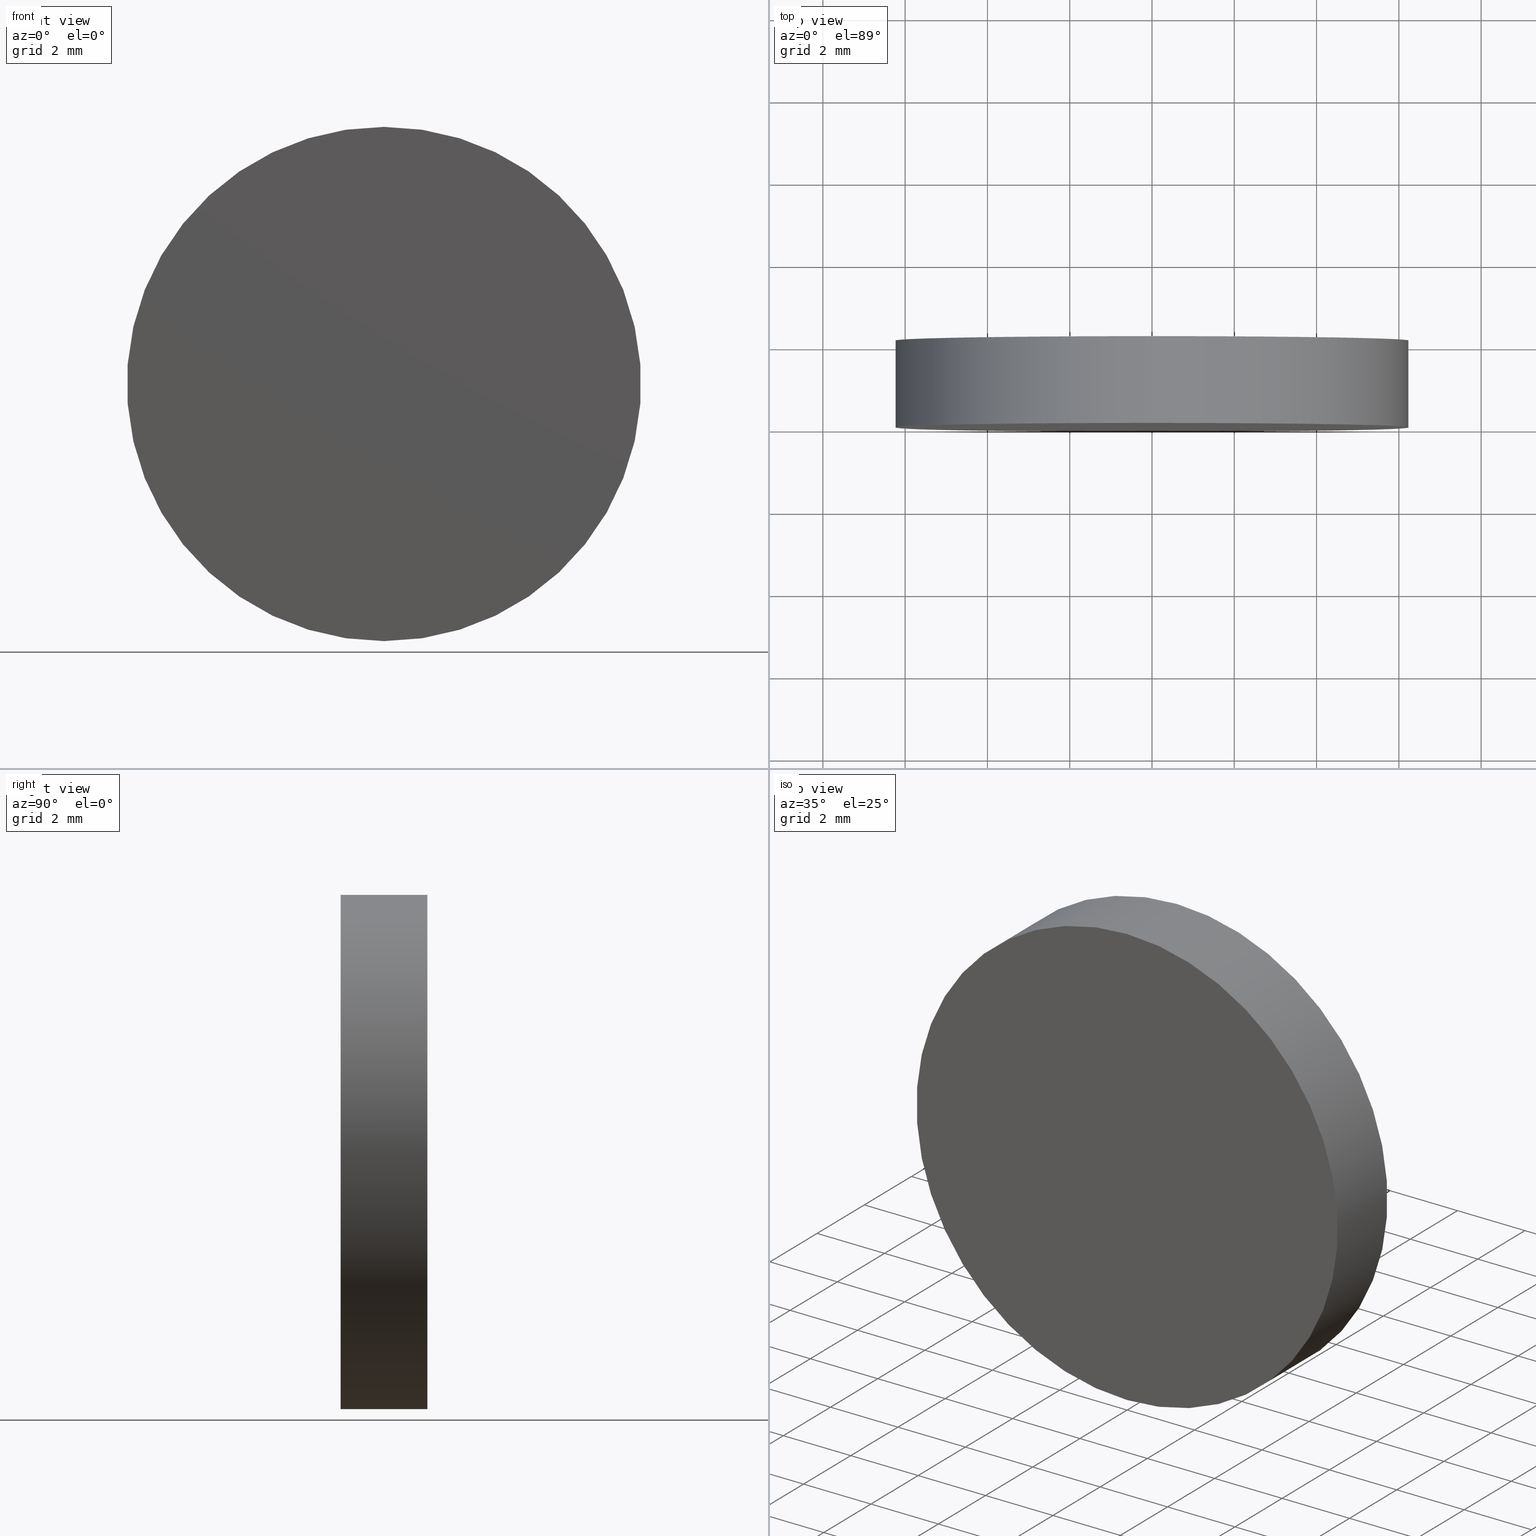
[diagram: canonical four-view strip — front | top / right | iso, engineering-drawing reading convention]
A machine part, canonical four-view strip (front | top / right | iso — engineering-drawing reading convention). The complete STEP part file that produces these views, byte-faithful:
ISO-10303-21;
HEADER;
FILE_DESCRIPTION (( 'STEP AP214' ),
    '1' );
FILE_NAME ('248572.STEP',
    '2019-08-02T08:30:41',
    ( 'user' ),
    ( '΢���й�' ),
    'SwSTEP 2.0',
    'SolidWorks 2016',
    '' );
FILE_SCHEMA (( 'AUTOMOTIVE_DESIGN' ));
ENDSEC;

DATA;
#1 = CARTESIAN_POINT ( 'NONE',  ( 0.0000000000000000000, 0.0000000000000000000, 0.0000000000000000000 ) ) ;
#2 = SURFACE_SIDE_STYLE ('',( #54 ) ) ;
#3 = SHAPE_DEFINITION_REPRESENTATION ( #124, #74 ) ;
#4 = COLOUR_RGB ( '',1.000000000000000000, 1.000000000000000000, 1.000000000000000000 ) ;
#5 = EDGE_CURVE ( 'NONE', #65, #125, #123, .T. ) ;
#6 = PRESENTATION_STYLE_ASSIGNMENT (( #50 ) ) ;
#7 = DIRECTION ( 'NONE',  ( 0.0000000000000000000, 0.0000000000000000000, 1.000000000000000000 ) ) ;
#8 = PRODUCT_DEFINITION_FORMATION_WITH_SPECIFIED_SOURCE ( '�κ�', '', #60, .NOT_KNOWN. ) ;
#9 = DIRECTION ( 'NONE',  ( 0.0000000000000000000, 1.000000000000000000, 0.0000000000000000000 ) ) ;
#10 = DIRECTION ( 'NONE',  ( 0.0000000000000000000, 1.000000000000000000, 0.0000000000000000000 ) ) ;
#11 = APPLICATION_CONTEXT ( 'automotive_design' ) ;
#12 =( NAMED_UNIT ( * ) SI_UNIT ( $, .STERADIAN. ) SOLID_ANGLE_UNIT ( ) );
#13 = VERTEX_POINT ( 'NONE', #49 ) ;
#14 = ORIENTED_EDGE ( 'NONE', *, *, #91, .F. ) ;
#15 = SURFACE_SIDE_STYLE ('',( #86 ) ) ;
#16 = CARTESIAN_POINT ( 'NONE',  ( 0.0000000000000000000, 0.0000000000000000000, 0.0000000000000000000 ) ) ;
#17 = EDGE_CURVE ( 'NONE', #13, #65, #31, .T. ) ;
#18 = CIRCLE ( 'NONE', #41, 6.250000000000000000 ) ;
#19 = DIRECTION ( 'NONE',  ( 0.0000000000000000000, 1.000000000000000000, 0.0000000000000000000 ) ) ;
#20 = ORIENTED_EDGE ( 'NONE', *, *, #5, .T. ) ;
#21 = FACE_OUTER_BOUND ( 'NONE', #24, .T. ) ;
#22 = DIRECTION ( 'NONE',  ( 1.000000000000000000, 0.0000000000000000000, 0.0000000000000000000 ) ) ;
#23 = STYLED_ITEM ( 'NONE', ( #6 ), #74 ) ;
#24 = EDGE_LOOP ( 'NONE', ( #14, #34 ) ) ;
#25 = FILL_AREA_STYLE_COLOUR ( '', #59 ) ;
#26 = EDGE_CURVE ( 'NONE', #13, #106, #29, .T. ) ;
#27 = CARTESIAN_POINT ( 'NONE',  ( 0.0000000000000000000, 0.0000000000000000000, -6.250000000000000000 ) ) ;
#28 =( GEOMETRIC_REPRESENTATION_CONTEXT ( 3 ) GLOBAL_UNCERTAINTY_ASSIGNED_CONTEXT ( ( #117 ) ) GLOBAL_UNIT_ASSIGNED_CONTEXT ( ( #128, #37, #115 ) ) REPRESENTATION_CONTEXT ( 'NONE', 'WORKASPACE' ) );
#29 = LINE ( 'NONE', #78, #121 ) ;
#30 = ADVANCED_FACE ( 'NONE', ( #36 ), #83, .T. ) ;
#31 = CIRCLE ( 'NONE', #61, 6.250000000000000000 ) ;
#32 = AXIS2_PLACEMENT_3D ( 'NONE', #1, #107, #22 ) ;
#33 = DIRECTION ( 'NONE',  ( 0.0000000000000000000, -0.0000000000000000000, 1.000000000000000000 ) ) ;
#34 = ORIENTED_EDGE ( 'NONE', *, *, #58, .F. ) ;
#35 = DIRECTION ( 'NONE',  ( 0.0000000000000000000, 0.0000000000000000000, 1.000000000000000000 ) ) ;
#36 = FACE_OUTER_BOUND ( 'NONE', #134, .T. ) ;
#37 =( NAMED_UNIT ( * ) PLANE_ANGLE_UNIT ( ) SI_UNIT ( $, .RADIAN. ) );
#38 = AXIS2_PLACEMENT_3D ( 'NONE', #131, #56, #114 ) ;
#39 = ORIENTED_EDGE ( 'NONE', *, *, #5, .F. ) ;
#40 = ORIENTED_EDGE ( 'NONE', *, *, #58, .T. ) ;
#41 = AXIS2_PLACEMENT_3D ( 'NONE', #77, #9, #63 ) ;
#42 = VECTOR ( 'NONE', #127, 1000.000000000000000 ) ;
#43 = CLOSED_SHELL ( 'NONE', ( #30, #118, #119, #135 ) ) ;
#44 = CARTESIAN_POINT ( 'NONE',  ( 0.0000000000000000000, 0.0000000000000000000, 0.0000000000000000000 ) ) ;
#45 = PRESENTATION_LAYER_ASSIGNMENT (  '', '', ( #129 ) ) ;
#46 = CARTESIAN_POINT ( 'NONE',  ( 0.0000000000000000000, 2.109999999999999900, 0.0000000000000000000 ) ) ;
#47 =( NAMED_UNIT ( * ) SI_UNIT ( $, .STERADIAN. ) SOLID_ANGLE_UNIT ( ) );
#48 = PRESENTATION_LAYER_ASSIGNMENT (  '', '', ( #23 ) ) ;
#49 = CARTESIAN_POINT ( 'NONE',  ( 0.0000000000000000000, 2.109999999999999900, -6.250000000000000000 ) ) ;
#50 = SURFACE_STYLE_USAGE ( .BOTH. , #2 ) ;
#51 = ORIENTED_EDGE ( 'NONE', *, *, #81, .F. ) ;
#52 = AXIS2_PLACEMENT_3D ( 'NONE', #122, #89, #139 ) ;
#53 = DIRECTION ( 'NONE',  ( 0.0000000000000000000, 0.0000000000000000000, 1.000000000000000000 ) ) ;
#54 = SURFACE_STYLE_FILL_AREA ( #57 ) ;
#55 = SURFACE_STYLE_USAGE ( .BOTH. , #15 ) ;
#56 = DIRECTION ( 'NONE',  ( -0.0000000000000000000, -1.000000000000000000, -0.0000000000000000000 ) ) ;
#57 = FILL_AREA_STYLE ('',( #100 ) ) ;
#58 = EDGE_CURVE ( 'NONE', #125, #106, #18, .T. ) ;
#59 = COLOUR_RGB ( '',1.000000000000000000, 1.000000000000000000, 1.000000000000000000 ) ;
#60 = PRODUCT ( '248572', '248572', '', ( #93 ) ) ;
#61 = AXIS2_PLACEMENT_3D ( 'NONE', #126, #19, #53 ) ;
#62 = CYLINDRICAL_SURFACE ( 'NONE', #52, 6.250000000000000000 ) ;
#63 = DIRECTION ( 'NONE',  ( 0.0000000000000000000, 0.0000000000000000000, 1.000000000000000000 ) ) ;
#64 = APPLICATION_CONTEXT ( 'automotive_design' ) ;
#65 = VERTEX_POINT ( 'NONE', #102 ) ;
#66 =( LENGTH_UNIT ( ) NAMED_UNIT ( * ) SI_UNIT ( .MILLI., .METRE. ) );
#67 = PRODUCT_DEFINITION ( 'δ֪', '', #8, #136 ) ;
#68 = EDGE_LOOP ( 'NONE', ( #97, #75 ) ) ;
#69 =( NAMED_UNIT ( * ) PLANE_ANGLE_UNIT ( ) SI_UNIT ( $, .RADIAN. ) );
#70 = PRODUCT_RELATED_PRODUCT_CATEGORY ( 'part', '', ( #60 ) ) ;
#71 = CIRCLE ( 'NONE', #85, 6.250000000000000000 ) ;
#72 = ORIENTED_EDGE ( 'NONE', *, *, #26, .F. ) ;
#73 =( GEOMETRIC_REPRESENTATION_CONTEXT ( 3 ) GLOBAL_UNCERTAINTY_ASSIGNED_CONTEXT ( ( #105 ) ) GLOBAL_UNIT_ASSIGNED_CONTEXT ( ( #82, #69, #12 ) ) REPRESENTATION_CONTEXT ( 'NONE', 'WORKASPACE' ) );
#74 = ADVANCED_BREP_SHAPE_REPRESENTATION ( '248572', ( #133, #32 ), #73 ) ;
#75 = ORIENTED_EDGE ( 'NONE', *, *, #81, .T. ) ;
#76 = DIRECTION ( 'NONE',  ( 0.0000000000000000000, 1.000000000000000000, 0.0000000000000000000 ) ) ;
#77 = CARTESIAN_POINT ( 'NONE',  ( 0.0000000000000000000, 0.0000000000000000000, 0.0000000000000000000 ) ) ;
#78 = CARTESIAN_POINT ( 'NONE',  ( 0.0000000000000000000, 2.109999999999999900, -6.250000000000000000 ) ) ;
#79 = APPLICATION_PROTOCOL_DEFINITION ( 'draft international standard', 'automotive_design', 1998, #64 ) ;
#80 = APPLICATION_PROTOCOL_DEFINITION ( 'draft international standard', 'automotive_design', 1998, #11 ) ;
#81 = EDGE_CURVE ( 'NONE', #65, #13, #71, .T. ) ;
#82 =( LENGTH_UNIT ( ) NAMED_UNIT ( * ) SI_UNIT ( .MILLI., .METRE. ) );
#83 = CYLINDRICAL_SURFACE ( 'NONE', #38, 6.250000000000000000 ) ;
#84 = AXIS2_PLACEMENT_3D ( 'NONE', #44, #10, #140 ) ;
#85 = AXIS2_PLACEMENT_3D ( 'NONE', #46, #111, #35 ) ;
#86 = SURFACE_STYLE_FILL_AREA ( #88 ) ;
#87 = UNCERTAINTY_MEASURE_WITH_UNIT (LENGTH_MEASURE( 1.000000000000000100E-005 ), #66, 'distance_accuracy_value', 'NONE');
#88 = FILL_AREA_STYLE ('',( #25 ) ) ;
#89 = DIRECTION ( 'NONE',  ( -0.0000000000000000000, -1.000000000000000000, -0.0000000000000000000 ) ) ;
#90 = FACE_OUTER_BOUND ( 'NONE', #132, .T. ) ;
#91 = EDGE_CURVE ( 'NONE', #106, #125, #109, .T. ) ;
#92 = DIRECTION ( 'NONE',  ( -0.0000000000000000000, -1.000000000000000000, -0.0000000000000000000 ) ) ;
#93 = PRODUCT_CONTEXT ( 'NONE', #64, 'mechanical' ) ;
#94 = FACE_OUTER_BOUND ( 'NONE', #68, .T. ) ;
#95 = ORIENTED_EDGE ( 'NONE', *, *, #17, .F. ) ;
#96 = MECHANICAL_DESIGN_GEOMETRIC_PRESENTATION_REPRESENTATION (  '', ( #129 ), #104 ) ;
#97 = ORIENTED_EDGE ( 'NONE', *, *, #17, .T. ) ;
#98 = ORIENTED_EDGE ( 'NONE', *, *, #91, .T. ) ;
#99 = MECHANICAL_DESIGN_GEOMETRIC_PRESENTATION_REPRESENTATION (  '', ( #23 ), #28 ) ;
#100 = FILL_AREA_STYLE_COLOUR ( '', #4 ) ;
#101 = CARTESIAN_POINT ( 'NONE',  ( 0.0000000000000000000, 2.109999999999999900, 0.0000000000000000000 ) ) ;
#102 = CARTESIAN_POINT ( 'NONE',  ( 7.654042494670957600E-016, 2.109999999999999900, 6.250000000000000000 ) ) ;
#103 = PLANE ( 'NONE',  #84 ) ;
#104 =( GEOMETRIC_REPRESENTATION_CONTEXT ( 3 ) GLOBAL_UNCERTAINTY_ASSIGNED_CONTEXT ( ( #87 ) ) GLOBAL_UNIT_ASSIGNED_CONTEXT ( ( #66, #113, #47 ) ) REPRESENTATION_CONTEXT ( 'NONE', 'WORKASPACE' ) );
#105 = UNCERTAINTY_MEASURE_WITH_UNIT (LENGTH_MEASURE( 1.000000000000000100E-005 ), #82, 'distance_accuracy_value', 'NONE');
#106 = VERTEX_POINT ( 'NONE', #27 ) ;
#107 = DIRECTION ( 'NONE',  ( 0.0000000000000000000, 0.0000000000000000000, 1.000000000000000000 ) ) ;
#108 = AXIS2_PLACEMENT_3D ( 'NONE', #16, #76, #7 ) ;
#109 = CIRCLE ( 'NONE', #108, 6.250000000000000000 ) ;
#110 = DIRECTION ( 'NONE',  ( 0.0000000000000000000, 1.000000000000000000, 0.0000000000000000000 ) ) ;
#111 = DIRECTION ( 'NONE',  ( 0.0000000000000000000, 1.000000000000000000, 0.0000000000000000000 ) ) ;
#112 = AXIS2_PLACEMENT_3D ( 'NONE', #101, #110, #33 ) ;
#113 =( NAMED_UNIT ( * ) PLANE_ANGLE_UNIT ( ) SI_UNIT ( $, .RADIAN. ) );
#114 = DIRECTION ( 'NONE',  ( 0.0000000000000000000, 0.0000000000000000000, -1.000000000000000000 ) ) ;
#115 =( NAMED_UNIT ( * ) SI_UNIT ( $, .STERADIAN. ) SOLID_ANGLE_UNIT ( ) );
#116 = PRESENTATION_STYLE_ASSIGNMENT (( #55 ) ) ;
#117 = UNCERTAINTY_MEASURE_WITH_UNIT (LENGTH_MEASURE( 1.000000000000000100E-005 ), #128, 'distance_accuracy_value', 'NONE');
#118 = ADVANCED_FACE ( 'NONE', ( #90 ), #62, .T. ) ;
#119 = ADVANCED_FACE ( 'NONE', ( #94 ), #120, .T. ) ;
#120 = PLANE ( 'NONE',  #112 ) ;
#121 = VECTOR ( 'NONE', #92, 1000.000000000000000 ) ;
#122 = CARTESIAN_POINT ( 'NONE',  ( 0.0000000000000000000, 2.109999999999999900, 0.0000000000000000000 ) ) ;
#123 = LINE ( 'NONE', #130, #42 ) ;
#124 = PRODUCT_DEFINITION_SHAPE ( 'NONE', 'NONE',  #67 ) ;
#125 = VERTEX_POINT ( 'NONE', #138 ) ;
#126 = CARTESIAN_POINT ( 'NONE',  ( 0.0000000000000000000, 2.109999999999999900, 0.0000000000000000000 ) ) ;
#127 = DIRECTION ( 'NONE',  ( -0.0000000000000000000, -1.000000000000000000, -0.0000000000000000000 ) ) ;
#128 =( LENGTH_UNIT ( ) NAMED_UNIT ( * ) SI_UNIT ( .MILLI., .METRE. ) );
#129 = STYLED_ITEM ( 'NONE', ( #116 ), #133 ) ;
#130 = CARTESIAN_POINT ( 'NONE',  ( 7.654042494670957600E-016, 2.109999999999999900, 6.250000000000000000 ) ) ;
#131 = CARTESIAN_POINT ( 'NONE',  ( 0.0000000000000000000, 2.109999999999999900, 0.0000000000000000000 ) ) ;
#132 = EDGE_LOOP ( 'NONE', ( #39, #95, #137, #98 ) ) ;
#133 = MANIFOLD_SOLID_BREP ( '͹̨-����1', #43 ) ;
#134 = EDGE_LOOP ( 'NONE', ( #51, #20, #40, #72 ) ) ;
#135 = ADVANCED_FACE ( 'NONE', ( #21 ), #103, .F. ) ;
#136 = PRODUCT_DEFINITION_CONTEXT ( 'detailed design', #11, 'design' ) ;
#137 = ORIENTED_EDGE ( 'NONE', *, *, #26, .T. ) ;
#138 = CARTESIAN_POINT ( 'NONE',  ( 7.654042494670957600E-016, 0.0000000000000000000, 6.250000000000000000 ) ) ;
#139 = DIRECTION ( 'NONE',  ( 0.0000000000000000000, 0.0000000000000000000, -1.000000000000000000 ) ) ;
#140 = DIRECTION ( 'NONE',  ( 0.0000000000000000000, -0.0000000000000000000, 1.000000000000000000 ) ) ;
ENDSEC;
END-ISO-10303-21;
